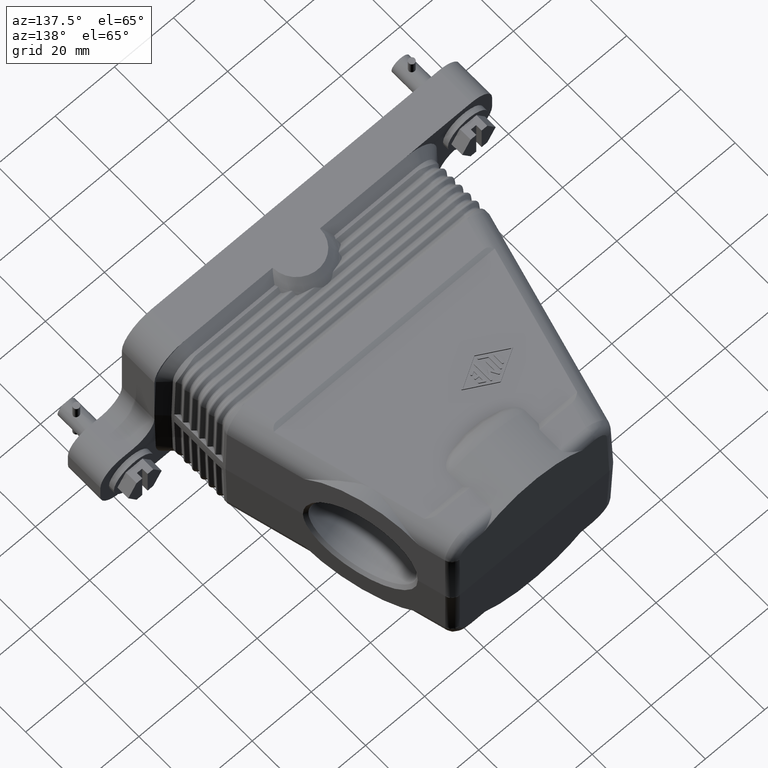
[diagram: clean part render]
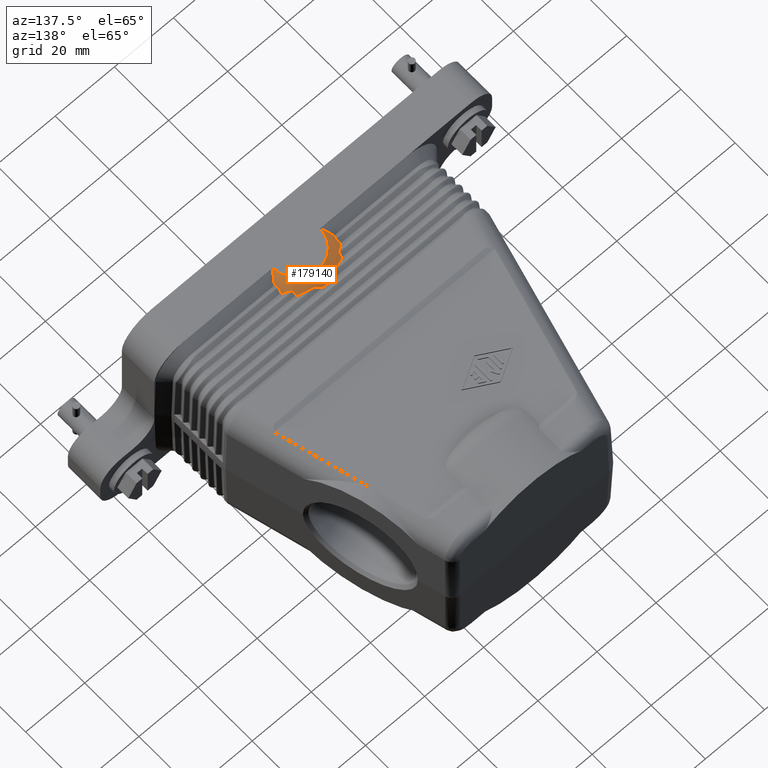
[diagram: same view with one face highlighted and labeled with its STEP entity id]
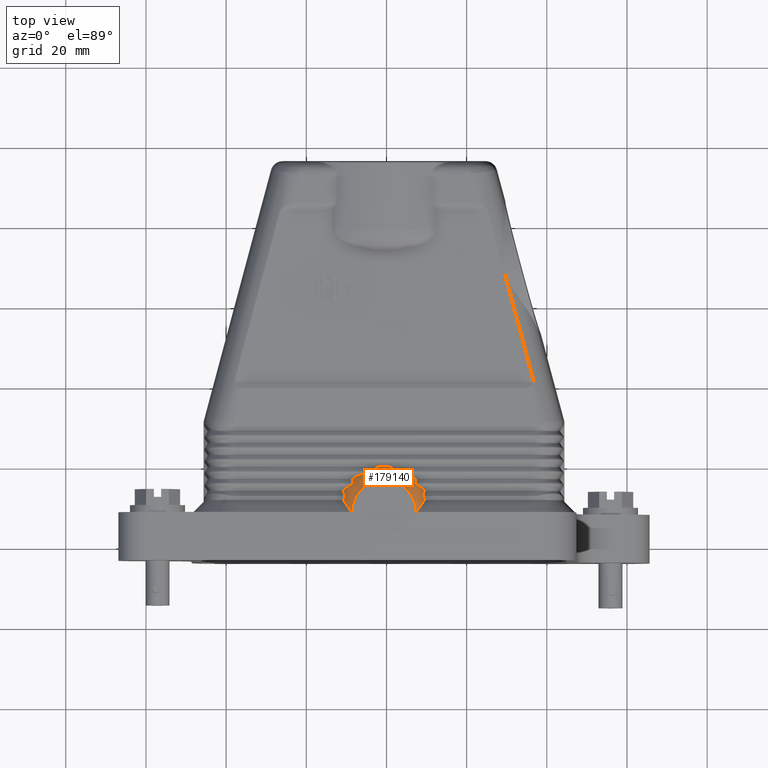
[diagram: same view with one face highlighted and labeled with its STEP entity id]
A machine part, auxiliary view. The second image highlights one B-rep face of the part: STEP entity #179140.
A second angle (top view) of the same face is appended — the face is thin or edge-on in the first view.
In plain terms, the highlighted conical surface has half-angle 45 deg.
Its self-contained STEP definition (entity closure, byte-faithful):
#23310=CARTESIAN_POINT('',(129.465261946884,11.2941429999999,
0.482701106468748));
#23320=DIRECTION('',(-0.721969607816452,0.,0.691924768590746));
#23330=VECTOR('',#23320,1.);
#23340=LINE('',#23310,#23330);
#23350=CARTESIAN_POINT('',(129.465261946884,11.294143,0.482701106468159)
);
#23360=VERTEX_POINT('',#23350);
#23370=CARTESIAN_POINT('',(129.447211898749,11.2941429999999,
0.50000000000091));
#23380=VERTEX_POINT('',#23370);
#23390=EDGE_CURVE('',#23360,#23380,#23340,.T.);
#24800=CARTESIAN_POINT('',(129.113919946626,14.0714930981126,
-0.315099934591598));
#24810=VERTEX_POINT('',#24800);
#24840=CARTESIAN_POINT('',(119.384906,-9.90585700000017,
-16.3000000000002));
#24850=DIRECTION('',(-5.09483864845226E-17,0.55470019622523,
-0.832050294337843));
#24860=DIRECTION('',(7.64225797267837E-17,-0.832050294337843,
-0.55470019622523));
#24870=AXIS2_PLACEMENT_3D('',#24840,#24850,#24860);
#24880=ELLIPSE('',#24870,32.8105166067226,20.3482185952482);
#24890=CARTESIAN_POINT('',(127.689908571006,15.0167929018874,
0.315099934591586));
#24900=VERTEX_POINT('',#24890);
#24910=EDGE_CURVE('',#24900,#24810,#24880,.T.);
#25660=CARTESIAN_POINT('',(111.384906,8.294143,3.));
#25670=VERTEX_POINT('',#25660);
#25700=CARTESIAN_POINT('',(119.384906,8.29414300000001,3.));
#25710=DIRECTION('',(0.,0.,-1.));
#25720=DIRECTION('',(1.,0.,0.));
#25730=AXIS2_PLACEMENT_3D('',#25700,#25710,#25720);
#25740=CIRCLE('',#25730,8.);
#25750=CARTESIAN_POINT('',(127.384906,8.29414300000001,3.));
#25760=VERTEX_POINT('',#25750);
#25770=EDGE_CURVE('',#25670,#25760,#25740,.T.);
#58330=CARTESIAN_POINT('',(119.384906,30.9792702784707,-16.0350819325744
));
#58340=DIRECTION('',(0.,0.642787609686539,0.766044443118978));
#58350=DIRECTION('',(0.,-0.766044443118978,0.642787609686539));
#58360=AXIS2_PLACEMENT_3D('',#58330,#58340,#58350);
#58370=ELLIPSE('',#58360,35.2917930224779,14.706483449846);
#58380=EDGE_CURVE('',#25760,#23360,#58370,.T.);
#77630=CARTESIAN_POINT('',(127.20841320312,15.5714930981126,
0.315099934591584));
#77640=CARTESIAN_POINT('',(127.208546732887,15.5647131907621,
0.319619872825282));
#77650=CARTESIAN_POINT('',(127.209005786885,15.5578124435785,
0.323980171980815));
#77660=CARTESIAN_POINT('',(127.209784085057,15.5508321853036,
0.328155971056005));
#77670=CARTESIAN_POINT('',(127.210562379027,15.5438519647125,
0.33233174758759));
#77680=CARTESIAN_POINT('',(127.211659679776,15.5367940326888,
0.336321963709589));
#77690=CARTESIAN_POINT('',(127.213056382048,15.5297035602849,
0.340109051894573));
#77700=CARTESIAN_POINT('',(127.214452448124,15.5226163175768,
0.343894415068537));
#77710=CARTESIAN_POINT('',(127.216147148202,15.515491632165,
0.347480570257746));
#77720=CARTESIAN_POINT('',(127.218129732892,15.5083215579544,
0.35087955201973));
#77730=CARTESIAN_POINT('',(127.220111567322,15.5011541970798,
0.35427724752176));
#77740=CARTESIAN_POINT('',(127.222378637343,15.4939535610901,
0.357481492236358));
#77750=CARTESIAN_POINT('',(127.224907423603,15.4867479661395,
0.360489272478253));
#77760=CARTESIAN_POINT('',(127.227436193265,15.4795424184837,
0.363497032978199));
#77770=CARTESIAN_POINT('',(127.230226412227,15.4723326000027,
0.366308054849164));
#77780=CARTESIAN_POINT('',(127.233249018386,15.4651477777319,
0.368923024616407));
#77790=CARTESIAN_POINT('',(127.236271627111,15.4579629493617,
0.3715379966036));
#77800=CARTESIAN_POINT('',(127.239526338474,15.4508036547075,
0.373956760221034));
#77810=CARTESIAN_POINT('',(127.242979949015,15.4436981650927,
0.376184054356874));
#77820=CARTESIAN_POINT('',(127.246433581265,15.4365926308121,
0.37841136249372));
#77830=CARTESIAN_POINT('',(127.250085857171,15.4295412825054,
0.380447131997203));
#77840=CARTESIAN_POINT('',(127.25390101627,15.4225701666783,
0.382299851817068));
#77850=CARTESIAN_POINT('',(127.257712966887,15.4156049134378,
0.384151013531958));
#77860=CARTESIAN_POINT('',(127.261701224548,15.4086936470379,
0.385826840984377));
#77870=CARTESIAN_POINT('',(127.265853427946,15.4018292187531,
0.387340778753988));
#77880=CARTESIAN_POINT('',(127.274156539398,15.3881025036473,
0.390368181997085));
#77890=CARTESIAN_POINT('',(127.283105314502,15.374580238921,
0.392743909406701));
#77900=CARTESIAN_POINT('',(127.292552854025,15.3613094080035,
0.394542923267463));
#77910=CARTESIAN_POINT('',(127.302000478088,15.3480384583328,
0.396341953226585));
#77920=CARTESIAN_POINT('',(127.311947669635,15.3350184163784,
0.397564016060566));
#77930=CARTESIAN_POINT('',(127.322252337678,15.322298508528,
0.39828142533912));
#77940=CARTESIAN_POINT('',(127.332562320049,15.3095720407614,
0.398999204600288));
#77950=CARTESIAN_POINT('',(127.343205726839,15.2971735350321,
0.399212012533416));
#77960=CARTESIAN_POINT('',(127.354111222049,15.2850747780965,
0.398992548010854));
#77970=CARTESIAN_POINT('',(127.365027501313,15.2729640571324,
0.398772866467666));
#77980=CARTESIAN_POINT('',(127.376245388556,15.2611115577032,
0.398118507642933));
#77990=CARTESIAN_POINT('',(127.38770755238,15.2495085666754,
0.39707856990025));
#78000=CARTESIAN_POINT('',(127.399169835408,15.2379054549788,
0.396038621342421));
#78010=CARTESIAN_POINT('',(127.410877381862,15.2265511857924,
0.394612789059841));
#78020=CARTESIAN_POINT('',(127.422780742548,15.2154413397609,
0.392841988313859));
#78030=CARTESIAN_POINT('',(127.434684136336,15.2043314628351,
0.391071182643618));
#78040=CARTESIAN_POINT('',(127.446783915222,15.1934657139979,
0.388955168172263));
#78050=CARTESIAN_POINT('',(127.459034176473,15.1828439617911,
0.386529938276465));
#78060=CARTESIAN_POINT('',(127.483534027231,15.1616010398224,
0.381679611472625));
#78070=CARTESIAN_POINT('',(127.508638360653,15.1413301821385,
0.375592436780208));
#78080=CARTESIAN_POINT('',(127.533987157066,15.1220691939129,
0.36853256535238));
#78090=CARTESIAN_POINT('',(127.546656943275,15.1124422041733,
0.365003914122091));
#78100=CARTESIAN_POINT('',(127.559431346004,15.1030346998133,
0.361220135988434));
#78110=CARTESIAN_POINT('',(127.572293511026,15.093839927695,
0.357199965976706));
#78120=CARTESIAN_POINT('',(127.585155460313,15.0846453097983,
0.353179863394289));
#78130=CARTESIAN_POINT('',(127.5981043407,15.0756641124128,
0.348923564535421));
#78140=CARTESIAN_POINT('',(127.611121767585,15.0668936831178,
0.344448504627193));
#78150=CARTESIAN_POINT('',(127.637156344195,15.0493530112634,
0.335498480091429));
#78160=CARTESIAN_POINT('',(127.663466044528,15.0326535528316,
0.325673701887701));
#78170=CARTESIAN_POINT('',(127.689908571006,15.0167929018874,
0.315099934591586));
#78180=B_SPLINE_CURVE_WITH_KNOTS('',3,(#77630,#77640,#77650,#77660,
#77670,#77680,#77690,#77700,#77710,#77720,#77730,#77740,#77750,#77760,
#77770,#77780,#77790,#77800,#77810,#77820,#77830,#77840,#77850,#77860,
#77870,#77880,#77890,#77900,#77910,#77920,#77930,#77940,#77950,#77960,
#77970,#77980,#77990,#78000,#78010,#78020,#78030,#78040,#78050,#78060,
#78070,#78080,#78090,#78100,#78110,#78120,#78130,#78140,#78150,#78160,
#78170),.UNSPECIFIED.,.F.,.F.,(4,3,3,3,3,3,3,3,3,3,3,3,3,3,3,3,3,3,4),(
0.,0.0244876197051206,0.0489909347448793,0.0734716782349668,
0.0980489564069375,0.122698044182837,0.147350758070563,0.1719125225268,
0.196379593570638,0.245459672372788,0.294648537814637,0.343661925584588,
0.392633883914586,0.441719335243738,0.490885713093112,0.589082298443814,
0.638001057132236,0.686956564457915,0.784849407051301),.UNSPECIFIED.);
#78190=CARTESIAN_POINT('',(127.20841320312,15.5714930981126,
0.315099934591583));
#78200=VERTEX_POINT('',#78190);
#78210=EDGE_CURVE('',#78200,#24900,#78180,.T.);
#97510=CARTESIAN_POINT('',(119.384906,-12.3058570000002,
-19.9000000000002));
#97520=DIRECTION('',(-5.09483864845226E-17,0.55470019622523,
-0.832050294337843));
#97530=DIRECTION('',(7.64225797267837E-17,-0.832050294337843,
-0.55470019622523));
#97540=AXIS2_PLACEMENT_3D('',#97510,#97520,#97530);
#97550=ELLIPSE('',#97540,37.1371781372794,23.0315001682479);
#97560=CARTESIAN_POINT('',(123.816290466856,18.0167929018874,
0.315099934591583));
#97570=VERTEX_POINT('',#97560);
#97580=CARTESIAN_POINT('',(126.52560707097,17.0714930981126,
-0.315099934591594));
#97590=VERTEX_POINT('',#97580);
#97600=EDGE_CURVE('',#97570,#97590,#97550,.T.);
#108560=CARTESIAN_POINT('',(129.422605663375,13.5167929018874,
-0.315099934591592));
#108570=VERTEX_POINT('',#108560);
#108600=CARTESIAN_POINT('',(129.113919946626,14.0714930981126,
-0.315099934591598));
#108610=CARTESIAN_POINT('',(129.135639581612,14.0556298298405,
-0.325675446773033));
#108620=CARTESIAN_POINT('',(129.157107663954,14.0387688683358,
-0.335606520618081));
#108630=CARTESIAN_POINT('',(129.178084862675,14.0209045948765,
-0.344697025522473));
#108640=CARTESIAN_POINT('',(129.199061679812,14.003040646376,
-0.353787365066638));
#108650=CARTESIAN_POINT('',(129.219551244082,13.9841723854703,
-0.362039745512667));
#108660=CARTESIAN_POINT('',(129.239306253993,13.9642755868943,
-0.369239548837919));
#108670=CARTESIAN_POINT('',(129.249184799609,13.9543261394769,
-0.37283982977388));
#108680=CARTESIAN_POINT('',(129.2588766145,13.9441223139245,
-0.376175613209826));
#108690=CARTESIAN_POINT('',(129.268357897199,13.9336471278599,
-0.379219138956708));
#108700=CARTESIAN_POINT('',(129.277846393867,13.9231639716008,
-0.382264980413518));
#108710=CARTESIAN_POINT('',(129.287163642644,13.9123641444972,
-0.385030335411314));
#108720=CARTESIAN_POINT('',(129.296236907568,13.9012686265194,
-0.387464079015837));
#108730=CARTESIAN_POINT('',(129.314383769693,13.8790771842262,
-0.392331655352876));
#108740=CARTESIAN_POINT('',(129.331552067593,13.8557042185811,
-0.395871906395202));
#108750=CARTESIAN_POINT('',(129.3471764758,13.8313350379229,
-0.397689621052007));
#108760=CARTESIAN_POINT('',(129.354988514954,13.8191507048637,
-0.398598459190468));
#108770=CARTESIAN_POINT('',(129.362414779951,13.8067178180048,
-0.399076882538103));
#108780=CARTESIAN_POINT('',(129.369384914442,13.7940599684164,
-0.399074780535482));
#108790=CARTESIAN_POINT('',(129.376355438662,13.7814014110734,
-0.399072678415328));
#108800=CARTESIAN_POINT('',(129.382926893659,13.7684103339159,
-0.398588263434745));
#108810=CARTESIAN_POINT('',(129.388967276273,13.7551885621381,
-0.397555029529697));
#108820=CARTESIAN_POINT('',(129.395007615449,13.7419668854399,
-0.396521803054773));
#108830=CARTESIAN_POINT('',(129.400514223996,13.7285191812546,
-0.394939663552022));
#108840=CARTESIAN_POINT('',(129.40537540688,13.714964295911,
-0.3927657158577));
#108850=CARTESIAN_POINT('',(129.410236710999,13.7014090725189,
-0.390591713946784));
#108860=CARTESIAN_POINT('',(129.41445008755,13.6877533898615,
-0.387826872732807));
#108870=CARTESIAN_POINT('',(129.417936244593,13.6741160305864,
-0.38445456307612));
#108880=CARTESIAN_POINT('',(129.421416465767,13.660501891598,
-0.381087995439972));
#108890=CARTESIAN_POINT('',(129.42419433526,13.6468266823056,
-0.377098206826029));
#108900=CARTESIAN_POINT('',(129.426197547552,13.6331565023121,
-0.372449213814948));
#108910=CARTESIAN_POINT('',(129.427198349873,13.6263268977171,
-0.370126582800157));
#108920=CARTESIAN_POINT('',(129.428003730634,13.6195107617409,
-0.367643313437962));
#108930=CARTESIAN_POINT('',(129.428606680941,13.6127342596226,
-0.365004899043213));
#108940=CARTESIAN_POINT('',(129.429209630107,13.6059577703383,
-0.362366489645353));
#108950=CARTESIAN_POINT('',(129.429610082571,13.599221512189,
-0.359573153547705));
#108960=CARTESIAN_POINT('',(129.429805909927,13.5925510783807,
-0.356634288622106));
#108970=CARTESIAN_POINT('',(129.430001738283,13.5858806105296,
-0.353695408697893));
#108980=CARTESIAN_POINT('',(129.429992943872,13.5792765541003,
-0.350611272518679));
#108990=CARTESIAN_POINT('',(129.429782335549,13.5727620553298,
-0.347394402582375));
#109000=CARTESIAN_POINT('',(129.429571724546,13.5662474736879,
-0.344177491724016));
#109010=CARTESIAN_POINT('',(129.429159370483,13.559822971878,
-0.340828149050164));
#109020=CARTESIAN_POINT('',(129.428552404903,13.5535075110222,
-0.337360723136371));
#109030=CARTESIAN_POINT('',(129.427945818551,13.5471959960342,
-0.333895463652605));
#109040=CARTESIAN_POINT('',(129.427142764339,13.5409703966568,
-0.330299742442723));
#109050=CARTESIAN_POINT('',(129.426148839135,13.5348446811764,
-0.326584298258699));
#109060=CARTESIAN_POINT('',(129.425154984342,13.5287193996517,
-0.322869117282809));
#109070=CARTESIAN_POINT('',(129.423970558297,13.5226963404243,
-0.319035560282889));
#109080=CARTESIAN_POINT('',(129.422605663375,13.5167929018874,
-0.315099934591592));
#109090=B_SPLINE_CURVE_WITH_KNOTS('',3,(#108600,#108610,#108620,#108630,
#108640,#108650,#108660,#108670,#108680,#108690,#108700,#108710,#108720,
#108730,#108740,#108750,#108760,#108770,#108780,#108790,#108800,#108810,
#108820,#108830,#108840,#108850,#108860,#108870,#108880,#108890,#108900,
#108910,#108920,#108930,#108940,#108950,#108960,#108970,#108980,#108990,
#109000,#109010,#109020,#109030,#109040,#109050,#109060,#109070,#109080)
,.UNSPECIFIED.,.F.,.F.,(4,3,3,3,3,3,3,3,3,3,3,3,3,3,3,3,4),(0.,
0.0869332550286746,0.173905340476099,0.217290249857499,0.260813505889959
,0.348022786253317,0.391449561158017,0.435020669106082,0.478750082870309
,0.52231529725241,0.56582298133535,0.587697289143628,0.609584880120765,
0.631429359891395,0.653180648493737,0.67486924111173,0.696559979171622),
.UNSPECIFIED.);
#109100=EDGE_CURVE('',#24810,#108570,#109090,.T.);
#136920=CARTESIAN_POINT('',(127.157905107216,16.5167929018874,
-0.315099934591594));
#136930=VERTEX_POINT('',#136920);
#136960=CARTESIAN_POINT('',(127.157905107216,16.5167929018874,
-0.315099934591594));
#136970=CARTESIAN_POINT('',(127.157583099683,16.5204777962127,
-0.317556530808482));
#136980=CARTESIAN_POINT('',(127.157153742447,16.5241950534391,
-0.319963914173236));
#136990=CARTESIAN_POINT('',(127.156617983845,16.5279379090511,
-0.32231803846502));
#137000=CARTESIAN_POINT('',(127.155563406792,16.5353052749202,
-0.326951851990488));
#137010=CARTESIAN_POINT('',(127.154095479128,16.5427709251426,
-0.331377921748056));
#137020=CARTESIAN_POINT('',(127.152237192969,16.5502766327115,
-0.335571287873273));
#137030=CARTESIAN_POINT('',(127.150378921743,16.5577822799647,
-0.339764620300656));
#137040=CARTESIAN_POINT('',(127.148131136487,16.5653250672885,
-0.343723718802936));
#137050=CARTESIAN_POINT('',(127.145536404668,16.5728446206305,
-0.347435164004347));
#137060=CARTESIAN_POINT('',(127.14293962925,16.5803700963367,
-0.35114953232223));
#137070=CARTESIAN_POINT('',(127.140008904088,16.5878420314179,
-0.354602986304422));
#137080=CARTESIAN_POINT('',(127.136759790974,16.5952976676423,
-0.357834565301669));
#137090=CARTESIAN_POINT('',(127.133510215891,16.6027543639335,
-0.361066603775434));
#137100=CARTESIAN_POINT('',(127.129942496363,16.6101895840724,
-0.364073190606669));
#137110=CARTESIAN_POINT('',(127.126092965498,16.6175785032284,
-0.366862109270183));
#137120=CARTESIAN_POINT('',(127.122243454697,16.6249673838748,
-0.369651013398414));
#137130=CARTESIAN_POINT('',(127.118112370437,16.6323095144908,
-0.372222087082673));
#137140=CARTESIAN_POINT('',(127.113739882003,16.6395799573042,
-0.374585319204524));
#137150=CARTESIAN_POINT('',(127.109367394884,16.6468503979324,
-0.376948550616072));
#137160=CARTESIAN_POINT('',(127.104753739619,16.6540488139206,
-0.379103856627765));
#137170=CARTESIAN_POINT('',(127.099941901615,16.6611514558872,
-0.381063635006764));
#137180=CARTESIAN_POINT('',(127.095130048976,16.6682541194563,
-0.383023419346395));
#137190=CARTESIAN_POINT('',(127.090120211503,16.6752607830652,
-0.384787645474063));
#137200=CARTESIAN_POINT('',(127.084957127321,16.6821495697194,
-0.386370869465196));
#137210=CARTESIAN_POINT('',(127.079798127646,16.6890329066653,
-0.387952840970302));
#137220=CARTESIAN_POINT('',(127.074471366961,16.6958193188547,
-0.389359376898395));
#137230=CARTESIAN_POINT('',(127.06898659961,16.7025247530294,
-0.390609218385704));
#137240=CARTESIAN_POINT('',(127.057323012325,16.7167841393948,
-0.393267058608843));
#137250=CARTESIAN_POINT('',(127.044964576669,16.7306532310311,
-0.395212039930254));
#137260=CARTESIAN_POINT('',(127.032104429174,16.7441176653405,
-0.396565959096415));
#137270=CARTESIAN_POINT('',(127.019244036745,16.7575823560942,
-0.397919904049396));
#137280=CARTESIAN_POINT('',(127.005878939748,16.7706442809831,
-0.398682183971448));
#137290=CARTESIAN_POINT('',(126.992189746847,16.7832801459372,
-0.398956771896631));
#137300=CARTESIAN_POINT('',(126.985342823893,16.789600225902,
-0.399094112525932));
#137310=CARTESIAN_POINT('',(126.978425974708,16.7958038304186,
-0.399109441706616));
#137320=CARTESIAN_POINT('',(126.971424402098,16.8019197761055,
-0.399014305518019));
#137330=CARTESIAN_POINT('',(126.964422843531,16.8080357095246,
-0.398919169520254));
#137340=CARTESIAN_POINT('',(126.957339811615,16.8140606915298,
-0.398713301405646));
#137350=CARTESIAN_POINT('',(126.950184106844,16.8199990865447,
-0.398405802670831));
#137360=CARTESIAN_POINT('',(126.935872772108,16.8318758144942,
-0.397790808415816));
#137370=CARTESIAN_POINT('',(126.921270799284,16.8434072325506,
-0.396770130231442));
#137380=CARTESIAN_POINT('',(126.906437732137,16.8546211410379,
-0.39540370503433));
#137390=CARTESIAN_POINT('',(126.891604528966,16.8658351523601,
-0.394037267306687));
#137400=CARTESIAN_POINT('',(126.876538885243,16.8767322466505,
-0.392324639357876));
#137410=CARTESIAN_POINT('',(126.86129217798,16.8873320921944,
-0.390313826075708));
#137420=CARTESIAN_POINT('',(126.846045456935,16.8979319473205,
-0.388303010975787));
#137430=CARTESIAN_POINT('',(126.830616939697,16.9082347782756,
-0.385993703328831));
#137440=CARTESIAN_POINT('',(126.815055248154,16.9182534640075,
-0.383426511610827));
#137450=CARTESIAN_POINT('',(126.799493594809,16.9282721251472,
-0.380859326194359));
#137460=CARTESIAN_POINT('',(126.78379839558,16.9380066928806,
-0.37803405828314));
#137470=CARTESIAN_POINT('',(126.768018157842,16.9474650329499,
-0.374986916089415));
#137480=CARTESIAN_POINT('',(126.752231822414,16.9569270278446,
-0.371938596440417));
#137490=CARTESIAN_POINT('',(126.736387619141,16.9660971786949,
-0.368674052611154));
#137500=CARTESIAN_POINT('',(126.720454802967,16.9750250631699,
-0.36520961686947));
#137510=CARTESIAN_POINT('',(126.704517847538,16.9839552670589,
-0.361744281086943));
#137520=CARTESIAN_POINT('',(126.688483999648,16.9926468924799,
-0.358076644202639));
#137530=CARTESIAN_POINT('',(126.672370281461,17.0011132019297,
-0.354226779083891));
#137540=CARTESIAN_POINT('',(126.656256544461,17.0095795212642,
-0.350376909470312));
#137550=CARTESIAN_POINT('',(126.640062742107,17.0178205601785,
-0.346344715324937));
#137560=CARTESIAN_POINT('',(126.623804711979,17.0258468703045,
-0.342147373446561));
#137570=CARTESIAN_POINT('',(126.591289034005,17.0418993018306,
-0.333752788383715));
#137580=CARTESIAN_POINT('',(126.558515030925,17.0570951136997,
-0.32469859086685));
#137590=CARTESIAN_POINT('',(126.52560707097,17.0714930981126,
-0.315099934591594));
#137600=B_SPLINE_CURVE_WITH_KNOTS('',3,(#136960,#136970,#136980,#136990,
#137000,#137010,#137020,#137030,#137040,#137050,#137060,#137070,#137080,
#137090,#137100,#137110,#137120,#137130,#137140,#137150,#137160,#137170,
#137180,#137190,#137200,#137210,#137220,#137230,#137240,#137250,#137260,
#137270,#137280,#137290,#137300,#137310,#137320,#137330,#137340,#137350,
#137360,#137370,#137380,#137390,#137400,#137410,#137420,#137430,#137440,
#137450,#137460,#137470,#137480,#137490,#137500,#137510,#137520,#137530,
#137540,#137550,#137560,#137570,#137580,#137590),.UNSPECIFIED.,.F.,.F.,(
4,3,3,3,3,3,3,3,3,3,3,3,3,3,3,3,3,3,3,3,3,4),(0.,0.0133421673396119,
0.0396955916427885,0.0660688331595005,0.0923330924224363,
0.118641519984235,0.145035876957968,0.17145500981545,0.197796284594976,
0.224032811580556,0.279966441652247,0.335953083114124,0.363858780039215,
0.391759624717221,0.447638071275319,0.503626964992572,0.559680333363526,
0.615693489939726,0.671530572925146,0.727330488551731,0.783156399297143,
0.894786033650439),.UNSPECIFIED.);
#137610=EDGE_CURVE('',#136930,#97590,#137600,.T.);
#147430=CARTESIAN_POINT('',(109.322600101251,11.2941429999999,
0.500000000000614));
#147440=VERTEX_POINT('',#147430);
#147470=CARTESIAN_POINT('',(109.322600101251,11.2941429999999,
0.500000000000627));
#147480=DIRECTION('',(-0.721969607816191,0.,-0.69192476859102));
#147490=VECTOR('',#147480,1.);
#147500=LINE('',#147470,#147490);
#147510=CARTESIAN_POINT('',(109.304550053116,11.294143,0.482701106468163
));
#147520=VERTEX_POINT('',#147510);
#147530=EDGE_CURVE('',#147440,#147520,#147500,.T.);
#160830=CARTESIAN_POINT('',(109.347206336625,13.5167929018874,
-0.315099934591594));
#160840=CARTESIAN_POINT('',(109.345841441704,13.5226963404169,
-0.319035560277947));
#160850=CARTESIAN_POINT('',(109.344657015659,13.528719399644,
-0.322869117278127));
#160860=CARTESIAN_POINT('',(109.343663160865,13.5348446811764,
-0.326584298258702));
#160870=CARTESIAN_POINT('',(109.342669235661,13.5409703966568,
-0.330299742442733));
#160880=CARTESIAN_POINT('',(109.341866181449,13.5471959960342,
-0.333895463652603));
#160890=CARTESIAN_POINT('',(109.341259595097,13.5535075110222,
-0.337360723136368));
#160900=CARTESIAN_POINT('',(109.340652629516,13.559822971883,
-0.340828149052886));
#160910=CARTESIAN_POINT('',(109.340240275454,13.566247473693,
-0.344177491726534));
#160920=CARTESIAN_POINT('',(109.340029664451,13.5727620553298,
-0.347394402582371));
#160930=CARTESIAN_POINT('',(109.339819056128,13.5792765541003,
-0.350611272518674));
#160940=CARTESIAN_POINT('',(109.339810261717,13.5858806105296,
-0.353695408697896));
#160950=CARTESIAN_POINT('',(109.340006090073,13.5925510783807,
-0.356634288622108));
#160960=CARTESIAN_POINT('',(109.340201917429,13.599221512189,
-0.3595731535477));
#160970=CARTESIAN_POINT('',(109.340602369893,13.6059577703383,
-0.362366489645369));
#160980=CARTESIAN_POINT('',(109.341205319059,13.6127342596226,
-0.365004899043217));
#160990=CARTESIAN_POINT('',(109.341808269366,13.6195107617409,
-0.367643313437965));
#161000=CARTESIAN_POINT('',(109.342613650127,13.6263268977171,
-0.370126582800155));
#161010=CARTESIAN_POINT('',(109.343614452448,13.6331565023121,
-0.372449213814949));
#161020=CARTESIAN_POINT('',(109.34561766474,13.6468266823047,
-0.377098206825714));
#161030=CARTESIAN_POINT('',(109.348395534232,13.6605018915971,
-0.381087995439763));
#161040=CARTESIAN_POINT('',(109.351875755408,13.6741160305864,
-0.384454563076122));
#161050=CARTESIAN_POINT('',(109.35536191245,13.6877533898615,
-0.387826872732801));
#161060=CARTESIAN_POINT('',(109.359575289001,13.701409072519,
-0.390591713946785));
#161070=CARTESIAN_POINT('',(109.36443659312,13.714964295911,
-0.392765715857696));
#161080=CARTESIAN_POINT('',(109.369297776004,13.7285191812546,
-0.394939663552015));
#161090=CARTESIAN_POINT('',(109.374804384551,13.7419668854399,
-0.396521803054768));
#161100=CARTESIAN_POINT('',(109.380844723728,13.7551885621381,
-0.397555029529691));
#161110=CARTESIAN_POINT('',(109.386885106341,13.7684103339159,
-0.398588263434737));
#161120=CARTESIAN_POINT('',(109.393456561338,13.7814014110734,
-0.399072678415325));
#161130=CARTESIAN_POINT('',(109.400427085559,13.7940599684164,
-0.399074780535479));
#161140=CARTESIAN_POINT('',(109.407397220049,13.8067178180049,
-0.3990768825381));
#161150=CARTESIAN_POINT('',(109.414823485046,13.8191507048637,
-0.398598459190465));
#161160=CARTESIAN_POINT('',(109.4226355242,13.8313350379229,
-0.397689621052003));
#161170=CARTESIAN_POINT('',(109.438259932407,13.8557042185811,
-0.395871906395197));
#161180=CARTESIAN_POINT('',(109.455428230307,13.8790771842262,
-0.392331655352885));
#161190=CARTESIAN_POINT('',(109.473575092432,13.9012686265194,
-0.387464079015835));
#161200=CARTESIAN_POINT('',(109.482648357356,13.9123641444973,
-0.385030335411303));
#161210=CARTESIAN_POINT('',(109.491965606133,13.9231639716007,
-0.382264980413519));
#161220=CARTESIAN_POINT('',(109.501454102801,13.9336471278599,
-0.379219138956705));
#161230=CARTESIAN_POINT('',(109.5109353855,13.9441223139246,
-0.37617561320982));
#161240=CARTESIAN_POINT('',(109.520627200391,13.9543261394769,
-0.372839829773883));
#161250=CARTESIAN_POINT('',(109.530505746007,13.9642755868943,
-0.369239548837912));
#161260=CARTESIAN_POINT('',(109.550260755919,13.9841723854704,
-0.362039745512646));
#161270=CARTESIAN_POINT('',(109.570750320188,14.0030406463761,
-0.353787365066598));
#161280=CARTESIAN_POINT('',(109.591727137325,14.0209045948765,
-0.344697025522463));
#161290=CARTESIAN_POINT('',(109.612704336046,14.0387688683358,
-0.335606520618083));
#161300=CARTESIAN_POINT('',(109.634172418388,14.0556298298405,
-0.325675446773018));
#161310=CARTESIAN_POINT('',(109.655892053375,14.0714930981126,
-0.315099934591592));
#161320=B_SPLINE_CURVE_WITH_KNOTS('',3,(#160830,#160840,#160850,#160860,
#160870,#160880,#160890,#160900,#160910,#160920,#160930,#160940,#160950,
#160960,#160970,#160980,#160990,#161000,#161010,#161020,#161030,#161040,
#161050,#161060,#161070,#161080,#161090,#161100,#161110,#161120,#161130,
#161140,#161150,#161160,#161170,#161180,#161190,#161200,#161210,#161220,
#161230,#161240,#161250,#161260,#161270,#161280,#161290,#161300,#161310)
,.UNSPECIFIED.,.F.,.F.,(4,3,3,3,3,3,3,3,3,3,3,3,3,3,3,3,4),(0.,
0.0216907380598999,0.0433793306778884,0.06513061928023,
0.0869750990508577,0.108862690028,0.13073699783628,0.174244681919208,
0.217809896301321,0.261539310065554,0.305110418013615,0.348537192918313,
0.435746473281666,0.479269729314112,0.522654638695545,0.609626724142965,
0.696559979171641),.UNSPECIFIED.);
#161330=CARTESIAN_POINT('',(109.347206336625,13.5167929018874,
-0.31509993459159));
#161340=VERTEX_POINT('',#161330);
#161350=CARTESIAN_POINT('',(109.655892053375,14.0714930981126,
-0.315099934591595));
#161360=VERTEX_POINT('',#161350);
#161370=EDGE_CURVE('',#161340,#161360,#161320,.T.);
#173970=CARTESIAN_POINT('',(119.384906,8.29414300000001,3.));
#173980=DIRECTION('',(0.,0.,-1.));
#173990=DIRECTION('',(-1.,0.,0.));
#174000=AXIS2_PLACEMENT_3D('',#173970,#173980,#173990);
#174010=CONICAL_SURFACE('',#174000,8.,0.785398163397448);
#174020=CARTESIAN_POINT('',(111.079903428994,15.0167929018874,
0.315099934591588));
#174030=CARTESIAN_POINT('',(111.106345955472,15.0326535528316,
0.325673701887712));
#174040=CARTESIAN_POINT('',(111.132655655805,15.0493530112634,
0.335498480091425));
#174050=CARTESIAN_POINT('',(111.158690232415,15.0668936831178,
0.344448504627196));
#174060=CARTESIAN_POINT('',(111.1717076593,15.0756641124127,
0.348923564535419));
#174070=CARTESIAN_POINT('',(111.184656539687,15.0846453097983,
0.353179863394308));
#174080=CARTESIAN_POINT('',(111.197518488974,15.093839927695,
0.357199965976704));
#174090=CARTESIAN_POINT('',(111.210380653996,15.1030346998133,
0.361220135988428));
#174100=CARTESIAN_POINT('',(111.223155056726,15.1124422041733,
0.3650039141221));
#174110=CARTESIAN_POINT('',(111.235824842934,15.1220691939129,
0.368532565352379));
#174120=CARTESIAN_POINT('',(111.261173639347,15.1413301821385,
0.375592436780198));
#174130=CARTESIAN_POINT('',(111.28627797277,15.1616010398225,
0.381679611472642));
#174140=CARTESIAN_POINT('',(111.310777823527,15.182843961791,
0.386529938276466));
#174150=CARTESIAN_POINT('',(111.323028084778,15.1934657139978,
0.38895516817226));
#174160=CARTESIAN_POINT('',(111.335127863665,15.2043314628352,
0.391071182643637));
#174170=CARTESIAN_POINT('',(111.347031257452,15.2154413397609,
0.392841988313858));
#174180=CARTESIAN_POINT('',(111.358934618138,15.2265511857926,
0.394612789059868));
#174190=CARTESIAN_POINT('',(111.370642164592,15.2379054549786,
0.396038621342413));
#174200=CARTESIAN_POINT('',(111.38210444762,15.2495085666754,
0.397078569900255));
#174210=CARTESIAN_POINT('',(111.393566611444,15.2611115577031,
0.398118507642926));
#174220=CARTESIAN_POINT('',(111.404784498687,15.2729640571325,
0.39877286646767));
#174230=CARTESIAN_POINT('',(111.415700777951,15.2850747780965,
0.398992548010857));
#174240=CARTESIAN_POINT('',(111.426606273161,15.2971735350321,
0.399212012533419));
#174250=CARTESIAN_POINT('',(111.437249679951,15.3095720407615,
0.398999204600289));
#174260=CARTESIAN_POINT('',(111.447559662322,15.322298508528,
0.398281425339122));
#174270=CARTESIAN_POINT('',(111.457864330365,15.3350184163784,
0.397564016060567));
#174280=CARTESIAN_POINT('',(111.467811521912,15.3480384583328,
0.396341953226583));
#174290=CARTESIAN_POINT('',(111.477259145975,15.3613094080035,
0.394542923267463));
#174300=CARTESIAN_POINT('',(111.486706685498,15.374580238921,
0.392743909406709));
#174310=CARTESIAN_POINT('',(111.495655460602,15.3881025036473,
0.390368181997074));
#174320=CARTESIAN_POINT('',(111.503958572054,15.4018292187531,
0.387340778753991));
#174330=CARTESIAN_POINT('',(111.508110775452,15.408693647038,
0.385826840984371));
#174340=CARTESIAN_POINT('',(111.512099033113,15.4156049134378,
0.384151013531968));
#174350=CARTESIAN_POINT('',(111.51591098373,15.4225701666784,
0.382299851817066));
#174360=CARTESIAN_POINT('',(111.519726142829,15.4295412825055,
0.380447131997194));
#174370=CARTESIAN_POINT('',(111.523378418735,15.4365926308121,
0.37841136249373));
#174380=CARTESIAN_POINT('',(111.526832050985,15.4436981650927,
0.376184054356872));
#174390=CARTESIAN_POINT('',(111.530285661538,15.4508036547321,
0.373956760213315));
#174400=CARTESIAN_POINT('',(111.533540372899,15.4579629493865,
0.371537996594574));
#174410=CARTESIAN_POINT('',(111.536562981614,15.4651477777319,
0.368923024616408));
#174420=CARTESIAN_POINT('',(111.539585587773,15.4723326000027,
0.36630805484914));
#174430=CARTESIAN_POINT('',(111.542375806735,15.4795424184837,
0.363497032978223));
#174440=CARTESIAN_POINT('',(111.544904576397,15.4867479661395,
0.360489272478256));
#174450=CARTESIAN_POINT('',(111.547433362657,15.4939535610901,
0.357481492236356));
#174460=CARTESIAN_POINT('',(111.549700432678,15.5011541970798,
0.354277247521755));
#174470=CARTESIAN_POINT('',(111.551682267108,15.5083215579544,
0.350879552019729));
#174480=CARTESIAN_POINT('',(111.553664851798,15.515491632165,
0.347480570257731));
#174490=CARTESIAN_POINT('',(111.555359551877,15.5226163175768,
0.343894415068546));
#174500=CARTESIAN_POINT('',(111.556755617953,15.5297035602849,
0.340109051894574));
#174510=CARTESIAN_POINT('',(111.558152320224,15.5367940326888,
0.336321963709579));
#174520=CARTESIAN_POINT('',(111.559249620973,15.5438519647125,
0.332331747587595));
#174530=CARTESIAN_POINT('',(111.560027914943,15.5508321853036,
0.328155971056003));
#174540=CARTESIAN_POINT('',(111.560806213113,15.5578124435613,
0.323980171991073));
#174550=CARTESIAN_POINT('',(111.561265267113,15.5647131907454,
0.31961987283641));
#174560=CARTESIAN_POINT('',(111.56139879688,15.5714930981126,
0.315099934591593));
#174570=B_SPLINE_CURVE_WITH_KNOTS('',3,(#174020,#174030,#174040,#174050,
#174060,#174070,#174080,#174090,#174100,#174110,#174120,#174130,#174140,
#174150,#174160,#174170,#174180,#174190,#174200,#174210,#174220,#174230,
#174240,#174250,#174260,#174270,#174280,#174290,#174300,#174310,#174320,
#174330,#174340,#174350,#174360,#174370,#174380,#174390,#174400,#174410,
#174420,#174430,#174440,#174450,#174460,#174470,#174480,#174490,#174500,
#174510,#174520,#174530,#174540,#174550,#174560),.UNSPECIFIED.,.F.,.F.,(
4,3,3,3,3,3,3,3,3,3,3,3,3,3,3,3,3,3,4),(0.,0.0978928425933877,
0.146848349919066,0.195767108607473,0.293963693958198,0.34313007180754,
0.392215523136751,0.441187481466708,0.490200869236698,0.539389734678529,
0.58846981348067,0.612936884524528,0.637498648980759,0.662151362868475,
0.68680045064437,0.711377728816342,0.735858472306429,0.76036178734619,
0.78484940705131),.UNSPECIFIED.);
#174580=CARTESIAN_POINT('',(111.079903428994,15.0167929018874,
0.315099934591586));
#174590=VERTEX_POINT('',#174580);
#174600=CARTESIAN_POINT('',(111.56139879688,15.5714930981126,
0.31509993459159));
#174610=VERTEX_POINT('',#174600);
#174620=EDGE_CURVE('',#174590,#174610,#174570,.T.);
#174630=ORIENTED_EDGE('',*,*,#174620,.F.);
#174640=CARTESIAN_POINT('',(119.384906,15.294143,0.499999999999971));
#174650=DIRECTION('',(-5.09483864845226E-17,-0.55470019622523,
-0.832050294337843));
#174660=DIRECTION('',(-7.64225797267838E-17,-0.832050294337843,
0.55470019622523));
#174670=AXIS2_PLACEMENT_3D('',#174640,#174650,#174660);
#174680=ELLIPSE('',#174670,12.619429464124,7.82623792124927);
#174690=CARTESIAN_POINT('',(111.611906892784,16.5167929018874,
-0.315099934591591));
#174700=VERTEX_POINT('',#174690);
#174710=EDGE_CURVE('',#174610,#174700,#174680,.T.);
#174720=ORIENTED_EDGE('',*,*,#174710,.F.);
#174730=CARTESIAN_POINT('',(112.24420492903,17.0714930981126,
-0.315099934591589));
#174740=CARTESIAN_POINT('',(112.211296969075,17.0570951136997,
-0.324698590866849));
#174750=CARTESIAN_POINT('',(112.178522965995,17.0418993018306,
-0.333752788383731));
#174760=CARTESIAN_POINT('',(112.146007288021,17.0258468703045,
-0.342147373446558));
#174770=CARTESIAN_POINT('',(112.129749257886,17.017820560175,
-0.34634471532674));
#174780=CARTESIAN_POINT('',(112.113555455532,17.0095795212605,
-0.350376909471961));
#174790=CARTESIAN_POINT('',(112.097441718539,17.0011132019297,
-0.354226779083889));
#174800=CARTESIAN_POINT('',(112.081328000352,16.9926468924799,
-0.358076644202623));
#174810=CARTESIAN_POINT('',(112.065294152462,16.9839552670588,
-0.361744281086967));
#174820=CARTESIAN_POINT('',(112.049357197033,16.9750250631699,
-0.365209616869465));
#174830=CARTESIAN_POINT('',(112.033424380859,16.966097178695,
-0.368674052611137));
#174840=CARTESIAN_POINT('',(112.017580177586,16.9569270278445,
-0.37193859644045));
#174850=CARTESIAN_POINT('',(112.001793842158,16.9474650329499,
-0.374986916089411));
#174860=CARTESIAN_POINT('',(111.98601360442,16.9380066928806,
-0.378034058283124));
#174870=CARTESIAN_POINT('',(111.970318405191,16.9282721251471,
-0.38085932619437));
#174880=CARTESIAN_POINT('',(111.954756751846,16.9182534640075,
-0.383426511610827));
#174890=CARTESIAN_POINT('',(111.939195060303,16.9082347782756,
-0.385993703328832));
#174900=CARTESIAN_POINT('',(111.923766543065,16.8979319473205,
-0.388303010975788));
#174910=CARTESIAN_POINT('',(111.90851982202,16.8873320921944,
-0.390313826075707));
#174920=CARTESIAN_POINT('',(111.893273114757,16.8767322466504,
-0.39232463935788));
#174930=CARTESIAN_POINT('',(111.878207471034,16.8658351523601,
-0.394037267306682));
#174940=CARTESIAN_POINT('',(111.863374267863,16.8546211410379,
-0.395403705034329));
#174950=CARTESIAN_POINT('',(111.848541200716,16.8434072325506,
-0.396770130231434));
#174960=CARTESIAN_POINT('',(111.833939227893,16.8318758144942,
-0.397790808415814));
#174970=CARTESIAN_POINT('',(111.819627893156,16.8199990865447,
-0.39840580267083));
#174980=CARTESIAN_POINT('',(111.812472188388,16.8140606915328,
-0.398713301405492));
#174990=CARTESIAN_POINT('',(111.805389156472,16.8080357095276,
-0.398919169520206));
#175000=CARTESIAN_POINT('',(111.798387597902,16.8019197761055,
-0.399014305518018));
#175010=CARTESIAN_POINT('',(111.791386025274,16.795803830403,
-0.399109441706857));
#175020=CARTESIAN_POINT('',(111.784469176089,16.7896002258862,
-0.399094112525585));
#175030=CARTESIAN_POINT('',(111.777622253153,16.7832801459372,
-0.398956771896629));
#175040=CARTESIAN_POINT('',(111.763933060252,16.7706442809831,
-0.398682183971445));
#175050=CARTESIAN_POINT('',(111.750567963255,16.7575823560942,
-0.397919904049395));
#175060=CARTESIAN_POINT('',(111.737707570826,16.7441176653405,
-0.396565959096412));
#175070=CARTESIAN_POINT('',(111.724847423331,16.7306532310311,
-0.395212039930252));
#175080=CARTESIAN_POINT('',(111.712488987675,16.7167841393947,
-0.393267058608834));
#175090=CARTESIAN_POINT('',(111.70082540039,16.7025247530294,
-0.390609218385699));
#175100=CARTESIAN_POINT('',(111.69534063304,16.6958193188548,
-0.389359376898396));
#175110=CARTESIAN_POINT('',(111.690013872354,16.6890329066652,
-0.387952840970293));
#175120=CARTESIAN_POINT('',(111.68485487268,16.6821495697194,
-0.386370869465196));
#175130=CARTESIAN_POINT('',(111.679691788497,16.6752607830652,
-0.384787645474053));
#175140=CARTESIAN_POINT('',(111.674681951024,16.6682541194563,
-0.383023419346395));
#175150=CARTESIAN_POINT('',(111.669870098385,16.6611514558872,
-0.381063635006759));
#175160=CARTESIAN_POINT('',(111.665058260381,16.6540488139207,
-0.379103856627776));
#175170=CARTESIAN_POINT('',(111.660444605116,16.6468503979324,
-0.376948550616059));
#175180=CARTESIAN_POINT('',(111.656072117997,16.6395799573042,
-0.374585319204521));
#175190=CARTESIAN_POINT('',(111.651699629563,16.6323095144908,
-0.372222087082667));
#175200=CARTESIAN_POINT('',(111.647568545303,16.6249673838749,
-0.369651013398427));
#175210=CARTESIAN_POINT('',(111.643719034502,16.6175785032284,
-0.366862109270178));
#175220=CARTESIAN_POINT('',(111.639869503637,16.6101895840724,
-0.364073190606657));
#175230=CARTESIAN_POINT('',(111.636301784109,16.6027543639335,
-0.361066603775432));
#175240=CARTESIAN_POINT('',(111.633052209026,16.5952976676423,
-0.357834565301664));
#175250=CARTESIAN_POINT('',(111.629803095912,16.5878420314179,
-0.354602986304412));
#175260=CARTESIAN_POINT('',(111.62687237075,16.5803700963367,
-0.351149532322231));
#175270=CARTESIAN_POINT('',(111.624275595332,16.5728446206305,
-0.347435164004347));
#175280=CARTESIAN_POINT('',(111.621680863513,16.5653250672885,
-0.343723718802915));
#175290=CARTESIAN_POINT('',(111.619433078257,16.5577822799647,
-0.339764620300664));
#175300=CARTESIAN_POINT('',(111.617574807031,16.5502766327115,
-0.335571287873267));
#175310=CARTESIAN_POINT('',(111.615716520872,16.5427709251426,
-0.331377921748058));
#175320=CARTESIAN_POINT('',(111.614248593208,16.5353052749202,
-0.326951851990478));
#175330=CARTESIAN_POINT('',(111.613194016155,16.5279379090511,
-0.322318038465013));
#175340=CARTESIAN_POINT('',(111.612658257553,16.5241950534396,
-0.319963914173574));
#175350=CARTESIAN_POINT('',(111.612228900317,16.5204777962132,
-0.317556530808832));
#175360=CARTESIAN_POINT('',(111.611906892784,16.5167929018874,
-0.315099934591593));
#175370=B_SPLINE_CURVE_WITH_KNOTS('',3,(#174730,#174740,#174750,#174760,
#174770,#174780,#174790,#174800,#174810,#174820,#174830,#174840,#174850,
#174860,#174870,#174880,#174890,#174900,#174910,#174920,#174930,#174940,
#174950,#174960,#174970,#174980,#174990,#175000,#175010,#175020,#175030,
#175040,#175050,#175060,#175070,#175080,#175090,#175100,#175110,#175120,
#175130,#175140,#175150,#175160,#175170,#175180,#175190,#175200,#175210,
#175220,#175230,#175240,#175250,#175260,#175270,#175280,#175290,#175300,
#175310,#175320,#175330,#175340,#175350,#175360),.UNSPECIFIED.,.F.,.F.,(
4,3,3,3,3,3,3,3,3,3,3,3,3,3,3,3,3,3,3,3,3,4),(0.,0.111629634353288,
0.167455545098698,0.223255460725275,0.27909254371068,0.335105700286916,
0.391159068657856,0.447147962375125,0.503026408933229,0.530927253611245,
0.558832950536313,0.614819591998183,0.67075322206987,0.696989749055424,
0.723331023834995,0.749750156692464,0.776144513666194,0.802452941227993,
0.828717200490918,0.855090442007649,0.881443866310823,0.894786033650426)
,.UNSPECIFIED.);
#175380=CARTESIAN_POINT('',(112.24420492903,17.0714930981126,
-0.315099934591593));
#175390=VERTEX_POINT('',#175380);
#175400=EDGE_CURVE('',#175390,#174700,#175370,.T.);
#175410=ORIENTED_EDGE('',*,*,#175400,.T.);
#175420=CARTESIAN_POINT('',(119.384906,-12.3058570000002,
-19.9000000000002));
#175430=DIRECTION('',(-5.09483864845226E-17,0.55470019622523,
-0.832050294337843));
#175440=DIRECTION('',(7.64225797267837E-17,-0.832050294337843,
-0.55470019622523));
#175450=AXIS2_PLACEMENT_3D('',#175420,#175430,#175440);
#175460=ELLIPSE('',#175450,37.1371781372794,23.0315001682479);
#175470=CARTESIAN_POINT('',(114.953521533144,18.0167929018874,
0.315099934591583));
#175480=VERTEX_POINT('',#175470);
#175490=EDGE_CURVE('',#175390,#175480,#175460,.T.);
#175500=ORIENTED_EDGE('',*,*,#175490,.F.);
#175510=CARTESIAN_POINT('',(116.462036798583,18.5714930981126,
0.315099934591587));
#175520=CARTESIAN_POINT('',(116.456379050548,18.566250098658,
0.31859526756136));
#175530=CARTESIAN_POINT('',(116.450409100153,18.5611765493453,
0.321835527578009));
#175540=CARTESIAN_POINT('',(116.444216976286,18.55624318353,
0.32487226721824));
#175550=CARTESIAN_POINT('',(116.438024377203,18.5513094391022,
0.327909239913887));
#175560=CARTESIAN_POINT('',(116.431605861323,18.546513935783,
0.330743539433336));
#175570=CARTESIAN_POINT('',(116.425023583335,18.5418359338537,
0.333411305037717));
#175580=CARTESIAN_POINT('',(116.418441205185,18.5371578607399,
0.3360791112371));
#175590=CARTESIAN_POINT('',(116.411693294936,18.5325966466984,
0.338580512491597));
#175600=CARTESIAN_POINT('',(116.404831124263,18.5281406805508,
0.340940248283393));
#175610=CARTESIAN_POINT('',(116.397968987892,18.5236847366772,
0.343299972279585));
#175620=CARTESIAN_POINT('',(116.390991850643,18.5193338956042,
0.345517962889926));
#175630=CARTESIAN_POINT('',(116.383947400188,18.5150835855092,
0.347611583767037));
#175640=CARTESIAN_POINT('',(116.376903013078,18.510833313633,
0.349705185818318));
#175650=CARTESIAN_POINT('',(116.369798954045,18.5066875957065,
0.351672768111609));
#175660=CARTESIAN_POINT('',(116.362612563443,18.5026087742722,
0.353543731309122));
#175670=CARTESIAN_POINT('',(116.35542911357,18.4985316219245,
0.35541392889337));
#175680=CARTESIAN_POINT('',(116.348176287798,18.4945292368092,
0.357183614589714));
#175690=CARTESIAN_POINT('',(116.340866515597,18.4905909486136,
0.358866265690595));
#175700=CARTESIAN_POINT('',(116.33355670608,18.4866526403129,
0.360548925381443));
#175710=CARTESIAN_POINT('',(116.326189710331,18.4827783877908,
0.362144522789282));
#175720=CARTESIAN_POINT('',(116.318774997382,18.4789597804399,
0.363663592359728));
#175730=CARTESIAN_POINT('',(116.311360269711,18.475141165507,
0.365182664946376));
#175740=CARTESIAN_POINT('',(116.303897675339,18.4713781777256,
0.366625184639841));
#175750=CARTESIAN_POINT('',(116.296394948989,18.4676642282096,
0.36799949712153));
#175760=CARTESIAN_POINT('',(116.281389714117,18.4602364370053,
0.370748082184298));
#175770=CARTESIAN_POINT('',(116.266223597647,18.4530033222923,
0.373225103264833));
#175780=CARTESIAN_POINT('',(116.250949279793,18.4459291442865,
0.375478992278702));
#175790=CARTESIAN_POINT('',(116.235675002252,18.4388549849514,
0.377732875343981));
#175800=CARTESIAN_POINT('',(116.220291322355,18.4319398492526,
0.379763189319028));
#175810=CARTESIAN_POINT('',(116.204845925281,18.4251630198739,
0.381603288541825));
#175820=CARTESIAN_POINT('',(116.189396414492,18.4183843855594,
0.383443877855275));
#175830=CARTESIAN_POINT('',(116.173906594607,18.411753381953,
0.385091876075691));
#175840=CARTESIAN_POINT('',(116.158345283981,18.4052264723957,
0.386579107568147));
#175850=CARTESIAN_POINT('',(116.14278481812,18.3986999171599,
0.388066258324392));
#175860=CARTESIAN_POINT('',(116.127161576054,18.3922816249895,
0.389391245934207));
#175870=CARTESIAN_POINT('',(116.111487924816,18.3859552808429,
0.390573012329393));
#175880=CARTESIAN_POINT('',(116.095814239882,18.3796289230952,
0.391754781265305));
#175890=CARTESIAN_POINT('',(116.080089891196,18.3733945354013,
0.392793231661711));
#175900=CARTESIAN_POINT('',(116.064324512788,18.3672398010592,
0.393702786705957));
#175910=CARTESIAN_POINT('',(116.048559124086,18.3610850626986,
0.394612342344063));
#175920=CARTESIAN_POINT('',(116.032752551866,18.3550099979005,
0.395392936168591));
#175930=CARTESIAN_POINT('',(116.016912930663,18.3490052653628,
0.39605580500716));
#175940=CARTESIAN_POINT('',(115.985233950926,18.3369958998645,
0.397381531691876));
#175950=CARTESIAN_POINT('',(115.953422208316,18.3252659413142,
0.398237896670635));
#175960=CARTESIAN_POINT('',(115.921535821568,18.3137662411587,
0.398689567434658));
#175970=CARTESIAN_POINT('',(115.889644363664,18.3022647121108,
0.399141310031613));
#175980=CARTESIAN_POINT('',(115.85770201806,18.2910025315906,
0.399187745087064));
#175990=CARTESIAN_POINT('',(115.82568130033,18.2799240105542,
0.398872566868655));
#176000=CARTESIAN_POINT('',(115.793660520493,18.2688454680304,
0.398557388038938));
#176010=CARTESIAN_POINT('',(115.761567986414,18.2579535875884,
0.397879817752741));
#176020=CARTESIAN_POINT('',(115.729422372051,18.2472246884787,
0.396868592169155));
#176030=CARTESIAN_POINT('',(115.697276670704,18.2364957603368,
0.395857363849213));
#176040=CARTESIAN_POINT('',(115.665077426527,18.2259299073619,
0.39451223805761));
#176050=CARTESIAN_POINT('',(115.632838754189,18.2155116045143,
0.392853182701327));
#176060=CARTESIAN_POINT('',(115.600600039039,18.2050932878314,
0.391194125141869));
#176070=CARTESIAN_POINT('',(115.568321607627,18.1948225786787,
0.389220984263681));
#176080=CARTESIAN_POINT('',(115.536014982402,18.1846898268365,
0.386947724655751));
#176090=CARTESIAN_POINT('',(115.503708341642,18.1745570701215,
0.384674463954629));
#176100=CARTESIAN_POINT('',(115.471373317791,18.1645623065585,
0.382100982230346));
#176110=CARTESIAN_POINT('',(115.43902004359,18.1547003320575,
0.379236991638161));
#176120=CARTESIAN_POINT('',(115.406666771163,18.1448383580972,
0.376373001202995));
#176130=CARTESIAN_POINT('',(115.374295118295,18.1351091956608,
0.373218431210163));
#176140=CARTESIAN_POINT('',(115.341914584528,18.1255111564067,
0.369779898215314));
#176150=CARTESIAN_POINT('',(115.309534063683,18.1159131209828,
0.366341366592685));
#176160=CARTESIAN_POINT('',(115.277144568796,18.1064462224522,
0.362618821624153));
#176170=CARTESIAN_POINT('',(115.244755450222,18.0971116653771,
0.358616573527825));
#176180=CARTESIAN_POINT('',(115.212366351774,18.0877771141027,
0.354614327918592));
#176190=CARTESIAN_POINT('',(115.179977560238,18.0785749119009,
0.350332342520215));
#176200=CARTESIAN_POINT('',(115.147598588389,18.0695087331533,
0.345773171299583));
#176210=CARTESIAN_POINT('',(115.082841075683,18.0513764963365,
0.33665488954473));
#176220=CARTESIAN_POINT('',(115.018121459739,18.0337861660632,
0.326428777375477));
#176230=CARTESIAN_POINT('',(114.953521533144,18.0167929018874,
0.315099934591589));
#176240=B_SPLINE_CURVE_WITH_KNOTS('',3,(#175510,#175520,#175530,#175540,
#175550,#175560,#175570,#175580,#175590,#175600,#175610,#175620,#175630,
#175640,#175650,#175660,#175670,#175680,#175690,#175700,#175710,#175720,
#175730,#175740,#175750,#175760,#175770,#175780,#175790,#175800,#175810,
#175820,#175830,#175840,#175850,#175860,#175870,#175880,#175890,#175900,
#175910,#175920,#175930,#175940,#175950,#175960,#175970,#175980,#175990,
#176000,#176010,#176020,#176030,#176040,#176050,#176060,#176070,#176080,
#176090,#176100,#176110,#176120,#176130,#176140,#176150,#176160,#176170,
#176180,#176190,#176200,#176210,#176220,#176230),.UNSPECIFIED.,.F.,.F.,(
4,3,3,3,3,3,3,3,3,3,3,3,3,3,3,3,3,3,3,3,3,3,3,3,4),(0.,
0.0254174778664197,0.0508956089121857,0.0764327832629339,
0.101952064999466,0.127369785884126,0.152780431413005,0.178204291121648,
0.2036461041248,0.2545774020318,0.305513389383626,0.356353176957375,
0.40717690970816,0.458015242294727,0.508867575057562,0.610584430631818,
0.712240746421259,0.813924124258158,0.915662179363242,1.01744649358912,
1.11926575330351,1.22110491646529,1.32294468644005,1.42476127288704,
1.6282074775213),.UNSPECIFIED.);
#176250=CARTESIAN_POINT('',(116.462036798583,18.5714930981126,
0.315099934591585));
#176260=VERTEX_POINT('',#176250);
#176270=EDGE_CURVE('',#176260,#175480,#176240,.T.);
#176280=ORIENTED_EDGE('',*,*,#176270,.T.);
#176290=CARTESIAN_POINT('',(119.384906,12.894143,4.09999999999999));
#176300=DIRECTION('',(-5.09483864845226E-17,-0.55470019622523,
-0.832050294337843));
#176310=DIRECTION('',(-7.64225797267838E-17,-0.832050294337843,
0.55470019622523));
#176320=AXIS2_PLACEMENT_3D('',#176290,#176300,#176310);
#176330=ELLIPSE('',#176320,8.29276793356719,5.14295634824951);
#176340=CARTESIAN_POINT('',(117.94143251238,19.5167929018874,
-0.315099934591597));
#176350=VERTEX_POINT('',#176340);
#176360=EDGE_CURVE('',#176260,#176350,#176330,.T.);
#176370=ORIENTED_EDGE('',*,*,#176360,.F.);
#176380=CARTESIAN_POINT('',(120.82837948762,19.5167929018874,
-0.315099934591593));
#176390=CARTESIAN_POINT('',(120.821498886405,19.519492355738,
-0.316899570492008));
#176400=CARTESIAN_POINT('',(120.814549190598,19.5220821207871,
-0.318588420996671));
#176410=CARTESIAN_POINT('',(120.807547794178,19.5245820980324,
-0.320188691409873));
#176420=CARTESIAN_POINT('',(120.800546267564,19.5270821217658,
-0.321788991580798));
#176430=CARTESIAN_POINT('',(120.793492368137,19.5294923563687,
-0.323300622618269));
#176440=CARTESIAN_POINT('',(120.786396994831,19.5318272999741,
-0.324739530529459));
#176450=CARTESIAN_POINT('',(120.779301562222,19.5341622630949,
-0.326178450466958));
#176460=CARTESIAN_POINT('',(120.772164294976,19.5364219163141,
-0.327544582187826));
#176470=CARTESIAN_POINT('',(120.764992664045,19.538617051913,
-0.3288497167288));
#176480=CARTESIAN_POINT('',(120.7578210117,19.5408121940664,
-0.330154855166793));
#176490=CARTESIAN_POINT('',(120.750614793799,19.5429427971804,
-0.331398949772977));
#176500=CARTESIAN_POINT('',(120.743379751805,19.5450170246795,
-0.332590932941511));
#176510=CARTESIAN_POINT('',(120.72890994296,19.5491654007959,
-0.334974853948048));
#176520=CARTESIAN_POINT('',(120.71432404274,19.5530898059551,
-0.337151784104414));
#176530=CARTESIAN_POINT('',(120.699661446236,19.5568342326287,
-0.339170855264905));
#176540=CARTESIAN_POINT('',(120.684998923284,19.560578640519,
-0.341189916297075));
#176550=CARTESIAN_POINT('',(120.670258438817,19.5641426401987,
-0.343050546287342));
#176560=CARTESIAN_POINT('',(120.65547805617,19.5675534081048,
-0.34478451005042));
#176570=CARTESIAN_POINT('',(120.640697761708,19.5709641556609,
-0.346518463467994));
#176580=CARTESIAN_POINT('',(120.62587731538,19.5742213759167,
-0.348125430758752));
#176590=CARTESIAN_POINT('',(120.611055312725,19.5773430295352,
-0.349627528848658));
#176600=CARTESIAN_POINT('',(120.596238371151,19.5804636172422,
-0.351129114036167));
#176610=CARTESIAN_POINT('',(120.581387058743,19.5834556108326,
-0.352529148509212));
#176620=CARTESIAN_POINT('',(120.566503712134,19.5863366539665,
-0.353845633616915));
#176630=CARTESIAN_POINT('',(120.551620781295,19.5892176166177,
-0.355162081948211));
#176640=CARTESIAN_POINT('',(120.53670751805,19.5919871602559,
-0.356394696053737));
#176650=CARTESIAN_POINT('',(120.521769918347,19.5946577726726,
-0.357556678099004));
#176660=CARTESIAN_POINT('',(120.506832309526,19.5973283867194,
-0.358718660853545));
#176670=CARTESIAN_POINT('',(120.491870243221,19.599900019449,
-0.359809949008293));
#176680=CARTESIAN_POINT('',(120.476888864587,19.6023823482488,
-0.360840802239648));
#176690=CARTESIAN_POINT('',(120.446926310507,19.607346972181,
-0.362902494721091));
#176700=CARTESIAN_POINT('',(120.416885892308,19.6119558265953,
-0.364723886196457));
#176710=CARTESIAN_POINT('',(120.386806066155,19.6162639519499,
-0.366363824598586));
#176720=CARTESIAN_POINT('',(120.356728120833,19.620571807926,
-0.368003660458629));
#176730=CARTESIAN_POINT('',(120.326597431674,19.6245803167395,
-0.369462162964981));
#176740=CARTESIAN_POINT('',(120.296425396915,19.6283287097823,
-0.370779802405118));
#176750=CARTESIAN_POINT('',(120.266253393447,19.6320770989376,
-0.372097440478721));
#176760=CARTESIAN_POINT('',(120.236040156947,19.6355649919875,
-0.373273841879117));
#176770=CARTESIAN_POINT('',(120.20579438516,19.6388201608381,
-0.374337678499495));
#176780=CARTESIAN_POINT('',(120.175548549974,19.6420753365121,
-0.375401517349824));
#176790=CARTESIAN_POINT('',(120.145269868257,19.6450976196861,
-0.376352597564766));
#176800=CARTESIAN_POINT('',(120.114964592203,19.6479074145517,
-0.377211957645422));
#176810=CARTESIAN_POINT('',(120.084659287379,19.6507172120849,
-0.378071318541921));
#176820=CARTESIAN_POINT('',(120.054327202634,19.6533144167477,
-0.378838841684563));
#176830=CARTESIAN_POINT('',(120.023973369812,19.6557143143961,
-0.379530299413239));
#176840=CARTESIAN_POINT('',(119.993619528508,19.6581142127152,
-0.380221757335155));
#176850=CARTESIAN_POINT('',(119.963243822872,19.6603167359694,
-0.380837075252369));
#176860=CARTESIAN_POINT('',(119.93285078498,19.6623334565533,
-0.381388216902543));
#176870=CARTESIAN_POINT('',(119.902457750493,19.6643501769113,
-0.381939358490979));
#176880=CARTESIAN_POINT('',(119.872047308228,19.6661810487662,
-0.382426274981403));
#176890=CARTESIAN_POINT('',(119.841623916641,19.6678348485541,
-0.382858055920641));
#176900=CARTESIAN_POINT('',(119.811200535074,19.6694886477971,
-0.383289836717653));
#176910=CARTESIAN_POINT('',(119.780764153773,19.670965343416,
-0.383666449359132));
#176920=CARTESIAN_POINT('',(119.750319401859,19.6722715343732,
-0.383994725006319));
#176930=CARTESIAN_POINT('',(119.689430141456,19.6748839058438,
-0.384651273675913));
#176940=CARTESIAN_POINT('',(119.628506508633,19.6768156661466,
-0.385115978182646));
#176950=CARTESIAN_POINT('',(119.567589835243,19.6780996179578,
-0.385422331350083));
#176960=CARTESIAN_POINT('',(119.506673340518,19.6793835660033,
-0.385728683619004));
#176970=CARTESIAN_POINT('',(119.445763247261,19.6800193918363,
-0.385876391836324));
#176980=CARTESIAN_POINT('',(119.384906,19.6800193918363,
-0.385876391836324));
#176990=CARTESIAN_POINT('',(119.324048752739,19.6800193918363,
-0.385876391836324));
#177000=CARTESIAN_POINT('',(119.263138659482,19.6793835660033,
-0.385728683619001));
#177010=CARTESIAN_POINT('',(119.202222164757,19.6780996179578,
-0.38542233135008));
#177020=CARTESIAN_POINT('',(119.141305491368,19.6768156661466,
-0.385115978182644));
#177030=CARTESIAN_POINT('',(119.080381858544,19.6748839058438,
-0.384651273675914));
#177040=CARTESIAN_POINT('',(119.019492598141,19.6722715343732,
-0.383994725006319));
#177050=CARTESIAN_POINT('',(118.989047846227,19.670965343416,
-0.383666449359133));
#177060=CARTESIAN_POINT('',(118.958611464926,19.6694886477971,
-0.383289836717653));
#177070=CARTESIAN_POINT('',(118.928188083359,19.6678348485541,
-0.382858055920644));
#177080=CARTESIAN_POINT('',(118.897764691774,19.6661810487664,
-0.382426274981446));
#177090=CARTESIAN_POINT('',(118.86735424951,19.6643501769115,
-0.381939358491031));
#177100=CARTESIAN_POINT('',(118.83696121502,19.6623334565533,
-0.381388216902543));
#177110=CARTESIAN_POINT('',(118.806568177128,19.6603167359694,
-0.380837075252371));
#177120=CARTESIAN_POINT('',(118.776192471493,19.6581142127152,
-0.380221757335154));
#177130=CARTESIAN_POINT('',(118.745838630188,19.6557143143961,
-0.379530299413238));
#177140=CARTESIAN_POINT('',(118.715484797366,19.6533144167477,
-0.37883884168456));
#177150=CARTESIAN_POINT('',(118.685152712621,19.6507172120849,
-0.37807131854192));
#177160=CARTESIAN_POINT('',(118.654847407797,19.6479074145517,
-0.377211957645422));
#177170=CARTESIAN_POINT('',(118.624542131743,19.6450976196861,
-0.376352597564764));
#177180=CARTESIAN_POINT('',(118.594263450026,19.6420753365121,
-0.375401517349828));
#177190=CARTESIAN_POINT('',(118.56401761484,19.6388201608381,
-0.374337678499495));
#177200=CARTESIAN_POINT('',(118.533771843053,19.6355649919875,
-0.373273841879117));
#177210=CARTESIAN_POINT('',(118.503558606553,19.6320770989376,
-0.372097440478723));
#177220=CARTESIAN_POINT('',(118.473386603085,19.6283287097823,
-0.370779802405116));
#177230=CARTESIAN_POINT('',(118.443214568326,19.6245803167394,
-0.369462162964977));
#177240=CARTESIAN_POINT('',(118.413083879167,19.620571807926,
-0.368003660458627));
#177250=CARTESIAN_POINT('',(118.383005933845,19.6162639519499,
-0.366363824598584));
#177260=CARTESIAN_POINT('',(118.352926107693,19.6119558265953,
-0.364723886196454));
#177270=CARTESIAN_POINT('',(118.322885689493,19.607346972181,
-0.362902494721098));
#177280=CARTESIAN_POINT('',(118.292923135413,19.6023823482488,
-0.360840802239657));
#177290=CARTESIAN_POINT('',(118.277941756772,19.599900019448,
-0.359809949007866));
#177300=CARTESIAN_POINT('',(118.262979690468,19.5973283867184,
-0.358718660853075));
#177310=CARTESIAN_POINT('',(118.248042081653,19.5946577726726,
-0.357556678099011));
#177320=CARTESIAN_POINT('',(118.23310448195,19.591987160256,
-0.356394696053754));
#177330=CARTESIAN_POINT('',(118.218191218705,19.5892176166177,
-0.355162081948205));
#177340=CARTESIAN_POINT('',(118.203308287866,19.5863366539665,
-0.353845633616909));
#177350=CARTESIAN_POINT('',(118.188424941257,19.5834556108326,
-0.352529148509208));
#177360=CARTESIAN_POINT('',(118.173573628849,19.5804636172423,
-0.351129114036171));
#177370=CARTESIAN_POINT('',(118.158756687275,19.5773430295352,
-0.349627528848657));
#177380=CARTESIAN_POINT('',(118.14393468462,19.5742213759167,
-0.348125430758761));
#177390=CARTESIAN_POINT('',(118.129114238292,19.5709641556609,
-0.34651846346798));
#177400=CARTESIAN_POINT('',(118.11433394383,19.5675534081048,
-0.344784510050414));
#177410=CARTESIAN_POINT('',(118.099553561183,19.5641426401987,
-0.343050546287335));
#177420=CARTESIAN_POINT('',(118.084813076716,19.5605786405191,
-0.341189916297081));
#177430=CARTESIAN_POINT('',(118.070150553764,19.5568342326287,
-0.339170855264897));
#177440=CARTESIAN_POINT('',(118.05548795726,19.5530898059551,
-0.337151784104405));
#177450=CARTESIAN_POINT('',(118.04090205704,19.5491654007959,
-0.334974853948045));
#177460=CARTESIAN_POINT('',(118.026432248195,19.5450170246795,
-0.332590932941497));
#177470=CARTESIAN_POINT('',(118.019197206201,19.5429427971804,
-0.331398949772991));
#177480=CARTESIAN_POINT('',(118.0119909883,19.5408121940664,
-0.330154855166784));
#177490=CARTESIAN_POINT('',(118.004819335956,19.538617051913,
-0.328849716728805));
#177500=CARTESIAN_POINT('',(117.997647705024,19.5364219163141,
-0.32754458218781));
#177510=CARTESIAN_POINT('',(117.990510437778,19.5341622630949,
-0.326178450466982));
#177520=CARTESIAN_POINT('',(117.983415005169,19.5318272999741,
-0.324739530529455));
#177530=CARTESIAN_POINT('',(117.976319631864,19.5294923563688,
-0.323300622618302));
#177540=CARTESIAN_POINT('',(117.969265732436,19.5270821217658,
-0.321788991580794));
#177550=CARTESIAN_POINT('',(117.962264205822,19.5245820980323,
-0.320188691409863));
#177560=CARTESIAN_POINT('',(117.955262809402,19.5220821207871,
-0.318588420996696));
#177570=CARTESIAN_POINT('',(117.948313113595,19.519492355738,
-0.316899570491983));
#177580=CARTESIAN_POINT('',(117.94143251238,19.5167929018874,
-0.315099934591592));
#177590=B_SPLINE_CURVE_WITH_KNOTS('',3,(#176380,#176390,#176400,#176410,
#176420,#176430,#176440,#176450,#176460,#176470,#176480,#176490,#176500,
#176510,#176520,#176530,#176540,#176550,#176560,#176570,#176580,#176590,
#176600,#176610,#176620,#176630,#176640,#176650,#176660,#176670,#176680,
#176690,#176700,#176710,#176720,#176730,#176740,#176750,#176760,#176770,
#176780,#176790,#176800,#176810,#176820,#176830,#176840,#176850,#176860,
#176870,#176880,#176890,#176900,#176910,#176920,#176930,#176940,#176950,
#176960,#176970,#176980,#176990,#177000,#177010,#177020,#177030,#177040,
#177050,#177060,#177070,#177080,#177090,#177100,#177110,#177120,#177130,
#177140,#177150,#177160,#177170,#177180,#177190,#177200,#177210,#177220,
#177230,#177240,#177250,#177260,#177270,#177280,#177290,#177300,#177310,
#177320,#177330,#177340,#177350,#177360,#177370,#177380,#177390,#177400,
#177410,#177420,#177430,#177440,#177450,#177460,#177470,#177480,#177490,
#177500,#177510,#177520,#177530,#177540,#177550,#177560,#177570,#177580)
,.UNSPECIFIED.,.F.,.F.,(4,3,3,3,3,3,3,3,3,3,3,3,3,3,3,3,3,3,3,3,3,3,3,3,
3,3,3,3,3,3,3,3,3,3,3,3,3,3,3,3,4),(0.,0.0228165962753699,
0.0456333878019206,0.0684625830572636,0.0913120440051767,
0.137077551056568,0.182889566284234,0.228636417876409,0.274282828855798,
0.319935632624329,0.365595291476644,0.456911118456448,0.548202102945024,
0.639508970876107,0.730838449582487,0.822194203698958,0.913576457736972,
1.00498147608021,1.09640132957891,1.279233261107,1.4619313206973,
1.64462938028758,1.82746131181571,1.91888116531441,2.01028618365766,
2.10166843769566,2.19302419181231,2.28435367051884,2.3756605384499,
2.46695152293847,2.55826734991825,2.60392700877063,2.64957981253914,
2.69522622351853,2.74097307511074,2.7867850903384,2.83255059738982,
2.8554000583377,2.87822925359303,2.9010460451196,2.92386264139495),
.UNSPECIFIED.);
#177600=CARTESIAN_POINT('',(120.82837948762,19.5167929018874,
-0.315099934591593));
#177610=VERTEX_POINT('',#177600);
#177620=EDGE_CURVE('',#177610,#176350,#177590,.T.);
#177630=ORIENTED_EDGE('',*,*,#177620,.T.);
#177640=CARTESIAN_POINT('',(119.384906,12.894143,4.09999999999999));
#177650=DIRECTION('',(-5.09483864845226E-17,-0.55470019622523,
-0.832050294337843));
#177660=DIRECTION('',(-7.64225797267838E-17,-0.832050294337843,
0.55470019622523));
#177670=AXIS2_PLACEMENT_3D('',#177640,#177650,#177660);
#177680=ELLIPSE('',#177670,8.29276793356719,5.14295634824951);
#177690=CARTESIAN_POINT('',(122.307775201417,18.5714930981126,
0.315099934591583));
#177700=VERTEX_POINT('',#177690);
#177710=EDGE_CURVE('',#177610,#177700,#177680,.T.);
#177720=ORIENTED_EDGE('',*,*,#177710,.F.);
#177730=CARTESIAN_POINT('',(123.816290466856,18.0167929018874,
0.315099934591586));
#177740=CARTESIAN_POINT('',(123.751690540261,18.0337861660632,
0.32642877737547));
#177750=CARTESIAN_POINT('',(123.686970924317,18.0513764963365,
0.33665488954473));
#177760=CARTESIAN_POINT('',(123.622213411611,18.0695087331533,
0.345773171299579));
#177770=CARTESIAN_POINT('',(123.589834439762,18.0785749119009,
0.350332342520213));
#177780=CARTESIAN_POINT('',(123.557445648226,18.0877771141027,
0.354614327918582));
#177790=CARTESIAN_POINT('',(123.525056549779,18.0971116653771,
0.358616573527826));
#177800=CARTESIAN_POINT('',(123.492667431204,18.1064462224522,
0.362618821624136));
#177810=CARTESIAN_POINT('',(123.460277936317,18.1159131209829,
0.366341366592695));
#177820=CARTESIAN_POINT('',(123.427897415472,18.1255111564067,
0.369779898215314));
#177830=CARTESIAN_POINT('',(123.395516881705,18.1351091956608,
0.373218431210152));
#177840=CARTESIAN_POINT('',(123.363145228837,18.1448383580972,
0.376373001202994));
#177850=CARTESIAN_POINT('',(123.33079195641,18.1547003320575,
0.379236991638157));
#177860=CARTESIAN_POINT('',(123.298438682215,18.1645623065567,
0.382100982229823));
#177870=CARTESIAN_POINT('',(123.266103658364,18.1745570701196,
0.384674463954214));
#177880=CARTESIAN_POINT('',(123.233797017598,18.1846898268365,
0.38694772465575));
#177890=CARTESIAN_POINT('',(123.201490392373,18.1948225786788,
0.389220984263689));
#177900=CARTESIAN_POINT('',(123.169211960961,18.2050932878314,
0.391194125141861));
#177910=CARTESIAN_POINT('',(123.136973245811,18.2155116045143,
0.392853182701326));
#177920=CARTESIAN_POINT('',(123.104734573458,18.2259299073668,
0.394512238058387));
#177930=CARTESIAN_POINT('',(123.072535329281,18.2364957603418,
0.395857363849689));
#177940=CARTESIAN_POINT('',(123.040389627949,18.2472246884787,
0.396868592169154));
#177950=CARTESIAN_POINT('',(123.008244013586,18.2579535875883,
0.397879817752739));
#177960=CARTESIAN_POINT('',(122.976151479507,18.2688454680304,
0.398557388038938));
#177970=CARTESIAN_POINT('',(122.944130699671,18.2799240105542,
0.398872566868654));
#177980=CARTESIAN_POINT('',(122.91210998194,18.2910025315906,
0.399187745087064));
#177990=CARTESIAN_POINT('',(122.880167636336,18.3022647121109,
0.39914131003161));
#178000=CARTESIAN_POINT('',(122.848276178432,18.3137662411587,
0.398689567434656));
#178010=CARTESIAN_POINT('',(122.816389791684,18.3252659413142,
0.398237896670634));
#178020=CARTESIAN_POINT('',(122.784578049074,18.3369958998645,
0.397381531691872));
#178030=CARTESIAN_POINT('',(122.752899069337,18.3490052653628,
0.396055805007158));
#178040=CARTESIAN_POINT('',(122.737059448134,18.3550099979005,
0.395392936168591));
#178050=CARTESIAN_POINT('',(122.721252875914,18.3610850626987,
0.394612342344059));
#178060=CARTESIAN_POINT('',(122.705487487212,18.3672398010592,
0.393702786705955));
#178070=CARTESIAN_POINT('',(122.689722108804,18.3733945354012,
0.392793231661717));
#178080=CARTESIAN_POINT('',(122.673997760118,18.3796289230952,
0.391754781265294));
#178090=CARTESIAN_POINT('',(122.658324075184,18.3859552808429,
0.390573012329393));
#178100=CARTESIAN_POINT('',(122.642650423946,18.3922816249895,
0.389391245934204));
#178110=CARTESIAN_POINT('',(122.62702718188,18.3986999171599,
0.38806625832439));
#178120=CARTESIAN_POINT('',(122.611466716019,18.4052264723957,
0.38657910756815));
#178130=CARTESIAN_POINT('',(122.595905405393,18.4117533819529,
0.385091876075702));
#178140=CARTESIAN_POINT('',(122.580415585507,18.4183843855595,
0.383443877855252));
#178150=CARTESIAN_POINT('',(122.564966074719,18.4251630198739,
0.381603288541819));
#178160=CARTESIAN_POINT('',(122.549520677645,18.4319398492527,
0.379763189319012));
#178170=CARTESIAN_POINT('',(122.534136997748,18.4388549849514,
0.377732875343983));
#178180=CARTESIAN_POINT('',(122.518862720207,18.4459291442865,
0.375478992278702));
#178190=CARTESIAN_POINT('',(122.503588402353,18.4530033222923,
0.373225103264823));
#178200=CARTESIAN_POINT('',(122.488422285883,18.4602364370053,
0.370748082184298));
#178210=CARTESIAN_POINT('',(122.473417051011,18.4676642282096,
0.367999497121531));
#178220=CARTESIAN_POINT('',(122.465914324668,18.4713781777221,
0.366625184641132));
#178230=CARTESIAN_POINT('',(122.458451730296,18.4751411655033,
0.365182664947844));
#178240=CARTESIAN_POINT('',(122.451037002618,18.4789597804399,
0.363663592359731));
#178250=CARTESIAN_POINT('',(122.443622289682,18.4827783877845,
0.362144522791801));
#178260=CARTESIAN_POINT('',(122.436255293933,18.4866526403062,
0.360548925384283));
#178270=CARTESIAN_POINT('',(122.428945484403,18.4905909486136,
0.358866265690598));
#178280=CARTESIAN_POINT('',(122.421635712202,18.4945292368092,
0.357183614589736));
#178290=CARTESIAN_POINT('',(122.41438288643,18.4985316219246,
0.355413928893336));
#178300=CARTESIAN_POINT('',(122.407199436557,18.5026087742722,
0.353543731309123));
#178310=CARTESIAN_POINT('',(122.400013045955,18.5066875957064,
0.351672768111631));
#178320=CARTESIAN_POINT('',(122.392908986922,18.5108333136331,
0.349705185818307));
#178330=CARTESIAN_POINT('',(122.385864599812,18.5150835855093,
0.347611583767034));
#178340=CARTESIAN_POINT('',(122.378820149357,18.5193338956042,
0.345517962889926));
#178350=CARTESIAN_POINT('',(122.371843012108,18.5236847366772,
0.343299972279601));
#178360=CARTESIAN_POINT('',(122.364980875737,18.5281406805508,
0.340940248283393));
#178370=CARTESIAN_POINT('',(122.358118705064,18.5325966466984,
0.338580512491625));
#178380=CARTESIAN_POINT('',(122.351370794815,18.53715786074,
0.336079111237061));
#178390=CARTESIAN_POINT('',(122.344788416665,18.5418359338537,
0.333411305037723));
#178400=CARTESIAN_POINT('',(122.338206138677,18.546513935783,
0.330743539433306));
#178410=CARTESIAN_POINT('',(122.331787622797,18.5513094391022,
0.327909239913905));
#178420=CARTESIAN_POINT('',(122.325595023714,18.55624318353,
0.324872267218239));
#178430=CARTESIAN_POINT('',(122.319402899847,18.5611765493453,
0.321835527578007));
#178440=CARTESIAN_POINT('',(122.313432949452,18.566250098658,
0.318595267561362));
#178450=CARTESIAN_POINT('',(122.307775201417,18.5714930981126,
0.315099934591589));
#178460=B_SPLINE_CURVE_WITH_KNOTS('',3,(#177730,#177740,#177750,#177760,
#177770,#177780,#177790,#177800,#177810,#177820,#177830,#177840,#177850,
#177860,#177870,#177880,#177890,#177900,#177910,#177920,#177930,#177940,
#177950,#177960,#177970,#177980,#177990,#178000,#178010,#178020,#178030,
#178040,#178050,#178060,#178070,#178080,#178090,#178100,#178110,#178120,
#178130,#178140,#178150,#178160,#178170,#178180,#178190,#178200,#178210,
#178220,#178230,#178240,#178250,#178260,#178270,#178280,#178290,#178300,
#178310,#178320,#178330,#178340,#178350,#178360,#178370,#178380,#178390,
#178400,#178410,#178420,#178430,#178440,#178450),.UNSPECIFIED.,.F.,.F.,(
4,3,3,3,3,3,3,3,3,3,3,3,3,3,3,3,3,3,3,3,3,3,3,3,4),(0.,0.203446204634305
,0.305262791081284,0.407102561056057,0.508941724217752,0.610760983932207
,0.712545298158149,0.814283353263192,0.915966731100049,1.01762304688941,
1.11933990246369,1.17019223522655,1.22103056781312,1.27185430056383,
1.32269408813762,1.37363007548942,1.42456137339641,1.45000318639958,
1.47542704610822,1.50083769163711,1.52625541252181,1.55177469425831,
1.57731186860904,1.60278999965483,1.62820747752125),.UNSPECIFIED.);
#178470=EDGE_CURVE('',#97570,#177700,#178460,.T.);
#178480=ORIENTED_EDGE('',*,*,#178470,.T.);
#178490=ORIENTED_EDGE('',*,*,#97600,.F.);
#178500=ORIENTED_EDGE('',*,*,#137610,.T.);
#178510=CARTESIAN_POINT('',(119.384906,15.294143,0.499999999999968));
#178520=DIRECTION('',(-5.09483864845226E-17,-0.55470019622523,
-0.832050294337843));
#178530=DIRECTION('',(-7.64225797267838E-17,-0.832050294337843,
0.55470019622523));
#178540=AXIS2_PLACEMENT_3D('',#178510,#178520,#178530);
#178550=ELLIPSE('',#178540,12.619429464124,7.82623792124927);
#178560=EDGE_CURVE('',#136930,#78200,#178550,.T.);
#178570=ORIENTED_EDGE('',*,*,#178560,.F.);
#178580=ORIENTED_EDGE('',*,*,#78210,.F.);
#178590=ORIENTED_EDGE('',*,*,#24910,.F.);
#178600=ORIENTED_EDGE('',*,*,#109100,.F.);
#178610=CARTESIAN_POINT('',(119.384906,17.6941430000001,
-3.10000000000005));
#178620=DIRECTION('',(-5.09483864845226E-17,-0.55470019622523,
-0.832050294337843));
#178630=DIRECTION('',(-7.64225797267838E-17,-0.832050294337843,
0.55470019622523));
#178640=AXIS2_PLACEMENT_3D('',#178610,#178620,#178630);
#178650=ELLIPSE('',#178640,16.9460909946808,10.509519494249);
#178660=CARTESIAN_POINT('',(129.093149919474,12.294143,0.500000000000002
));
#178670=VERTEX_POINT('',#178660);
#178680=EDGE_CURVE('',#108570,#178670,#178650,.T.);
#178690=ORIENTED_EDGE('',*,*,#178680,.F.);
#178700=CARTESIAN_POINT('',(119.384906,8.29414300000001,0.5));
#178710=DIRECTION('',(0.,0.,-1.));
#178720=DIRECTION('',(1.,0.,0.));
#178730=AXIS2_PLACEMENT_3D('',#178700,#178710,#178720);
#178740=CIRCLE('',#178730,10.5);
#178750=EDGE_CURVE('',#178670,#23380,#178740,.T.);
#178760=ORIENTED_EDGE('',*,*,#178750,.F.);
#178770=ORIENTED_EDGE('',*,*,#23390,.T.);
#178780=ORIENTED_EDGE('',*,*,#58380,.T.);
#178790=ORIENTED_EDGE('',*,*,#25770,.T.);
#178800=CARTESIAN_POINT('',(119.384906,30.9792702784707,
-16.0350819325744));
#178810=DIRECTION('',(0.,0.642787609686539,0.766044443118978));
#178820=DIRECTION('',(0.,-0.766044443118978,0.642787609686539));
#178830=AXIS2_PLACEMENT_3D('',#178800,#178810,#178820);
#178840=ELLIPSE('',#178830,35.2917930224779,14.706483449846);
#178850=EDGE_CURVE('',#147520,#25670,#178840,.T.);
#178860=ORIENTED_EDGE('',*,*,#178850,.T.);
#178870=ORIENTED_EDGE('',*,*,#147530,.T.);
#178880=CARTESIAN_POINT('',(119.384906,8.29414300000001,0.5));
#178890=DIRECTION('',(0.,0.,-1.));
#178900=DIRECTION('',(1.,0.,0.));
#178910=AXIS2_PLACEMENT_3D('',#178880,#178890,#178900);
#178920=CIRCLE('',#178910,10.5);
#178930=CARTESIAN_POINT('',(109.676662080526,12.294143,0.500000000000003
));
#178940=VERTEX_POINT('',#178930);
#178950=EDGE_CURVE('',#147440,#178940,#178920,.T.);
#178960=ORIENTED_EDGE('',*,*,#178950,.F.);
#178970=CARTESIAN_POINT('',(119.384906,17.6941430000001,
-3.10000000000005));
#178980=DIRECTION('',(-5.09483864845226E-17,-0.55470019622523,
-0.832050294337843));
#178990=DIRECTION('',(-7.64225797267838E-17,-0.832050294337843,
0.55470019622523));
#179000=AXIS2_PLACEMENT_3D('',#178970,#178980,#178990);
#179010=ELLIPSE('',#179000,16.9460909946808,10.509519494249);
#179020=EDGE_CURVE('',#178940,#161340,#179010,.T.);
#179030=ORIENTED_EDGE('',*,*,#179020,.F.);
#179040=ORIENTED_EDGE('',*,*,#161370,.F.);
#179050=CARTESIAN_POINT('',(119.384906,-9.90585700000018,
-16.3000000000002));
#179060=DIRECTION('',(-5.09483864845226E-17,0.55470019622523,
-0.832050294337843));
#179070=DIRECTION('',(7.64225797267837E-17,-0.832050294337843,
-0.55470019622523));
#179080=AXIS2_PLACEMENT_3D('',#179050,#179060,#179070);
#179090=ELLIPSE('',#179080,32.8105166067226,20.3482185952482);
#179100=EDGE_CURVE('',#161360,#174590,#179090,.T.);
#179110=ORIENTED_EDGE('',*,*,#179100,.F.);
#179120=EDGE_LOOP('',(#179110,#179040,#179030,#178960,#178870,#178860,
#178790,#178780,#178770,#178760,#178690,#178600,#178590,#178580,#178570,
#178500,#178490,#178480,#177720,#177630,#176370,#176280,#175500,#175410,
#174720,#174630));
#179130=FACE_OUTER_BOUND('',#179120,.T.);
#179140=ADVANCED_FACE('',(#179130),#174010,.T.);